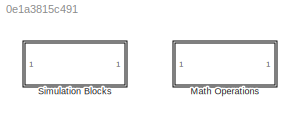
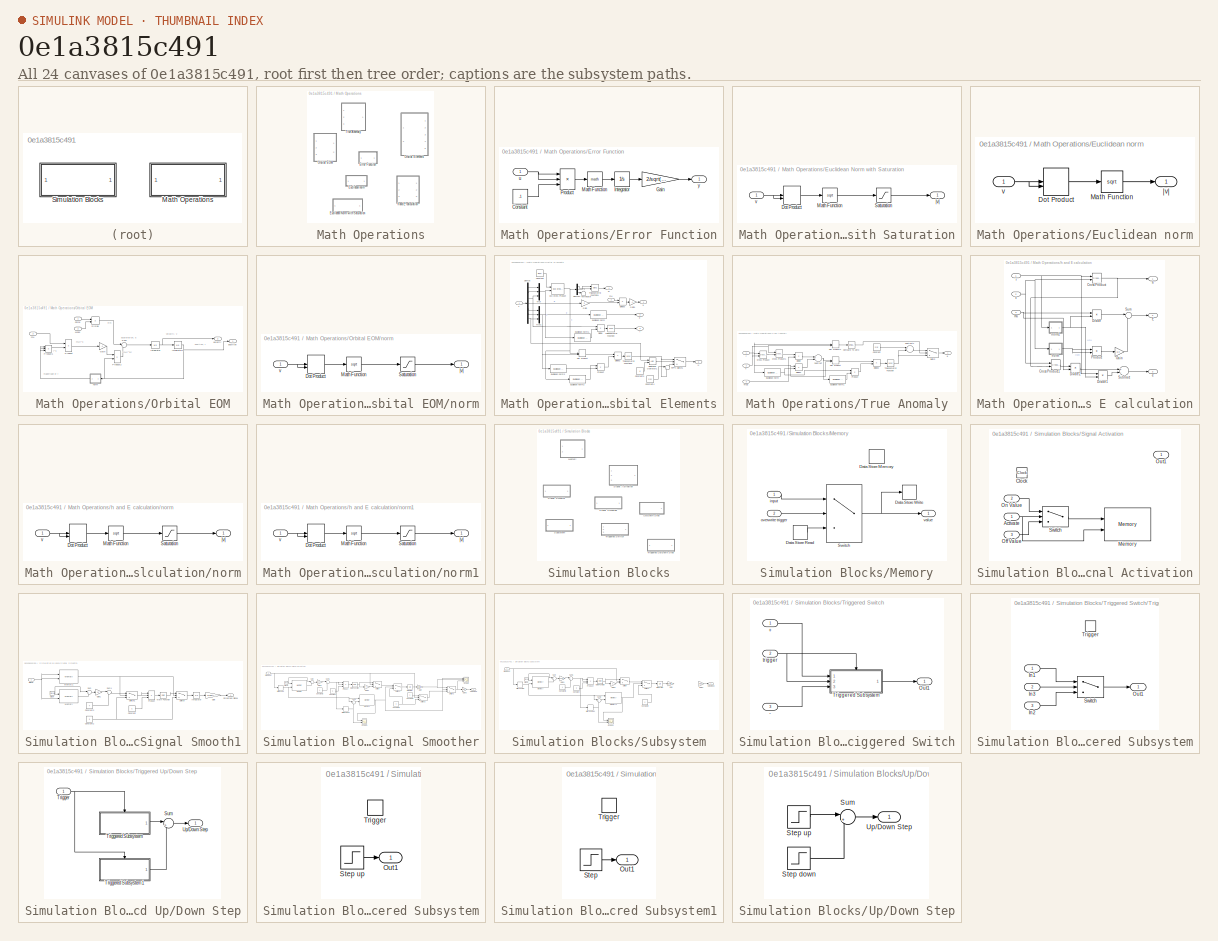
[diagram: thumbnail index - all 24 canvases of the model, root first then tree order]
MODEL slx_0e1a3815c491
KIND library
CONFIG AbsTol = auto
CONFIG EnableMultiTasking = off
CONFIG FixedStep = auto
CONFIG MaxStep = auto
CONFIG MinStep = auto
CONFIG RelTol = 1e-3
CONFIG SampleTimeConstraint = Unconstrained
CONFIG Solver = VariableStepAuto
CONFIG SolverName = VariableStepAuto
CONFIG StartTime = 0.0
CONFIG StopTime = 10.0
BLOCK [SubSystem] Math Operations
  Ports = []
  RequestExecContextInheritance = off
  Variant = off
BLOCK [SubSystem] Math Operations/Error Function
  Ports = [1, 1]
  RequestExecContextInheritance = off
  Variant = off
BLOCK [Constant] Math Operations/Error Function/Constant
  Value = -1
BLOCK [Gain] Math Operations/Error Function/Gain
  Gain = 2/sqrt(pi)
  OutDataTypeStr = Inherit: Inherit via internal rule
  ParamDataTypeStr = Inherit: Inherit via internal rule
  SaturateOnIntegerOverflow = off
BLOCK [Integrator] Math Operations/Error Function/Integrator
  Ports = [1, 1]
BLOCK [Math] Math Operations/Error Function/Math Function
  Ports = [1, 1]
BLOCK [Product] Math Operations/Error Function/Product
  InputSameDT = off
  Inputs = 3
  OutDataTypeStr = Inherit: Inherit via internal rule
  Ports = [3, 1]
  RndMeth = Floor
  SaturateOnIntegerOverflow = off
BLOCK [Inport] Math Operations/Error Function/u
  IconDisplay = Port number
BLOCK [Outport] Math Operations/Error Function/y
  IconDisplay = Port number
BLOCK [SubSystem] Math Operations/Euclidean Norm with Saturation
  Ports = [1, 1]
  RequestExecContextInheritance = off
  Variant = off
BLOCK [DotProduct] Math Operations/Euclidean Norm with Saturation/Dot Product
  OutDataTypeStr = Inherit: Inherit via internal rule
BLOCK [Math] Math Operations/Euclidean Norm with Saturation/Math Function
  Operator = sqrt
  Ports = [1, 1]
BLOCK [Saturate] Math Operations/Euclidean Norm with Saturation/Saturation
  InputPortMap = u0
  LowerLimit = 1e-10
  Ports = [1, 1]
  UpperLimit = 1e20
BLOCK [Inport] Math Operations/Euclidean Norm with Saturation/v
  IconDisplay = Port number
BLOCK [Outport] Math Operations/Euclidean Norm with Saturation/|v|
  IconDisplay = Port number
BLOCK [SubSystem] Math Operations/Euclidean norm
  Ports = [1, 1]
  RequestExecContextInheritance = off
  Variant = off
BLOCK [DotProduct] Math Operations/Euclidean norm/Dot Product
  OutDataTypeStr = Inherit: Inherit via internal rule
BLOCK [Math] Math Operations/Euclidean norm/Math Function
  Operator = sqrt
  Ports = [1, 1]
BLOCK [Inport] Math Operations/Euclidean norm/v
  IconDisplay = Port number
BLOCK [Outport] Math Operations/Euclidean norm/|v|
  IconDisplay = Port number
BLOCK [SubSystem] Math Operations/Orbital EOM
  Ports = [3, 2]
  RequestExecContextInheritance = off
  Variant = off
BLOCK [Product] Math Operations/Orbital EOM/Divide
  InputSameDT = off
  Inputs = */
  OutDataTypeStr = Inherit: Inherit via internal rule
  Ports = [2, 1]
  RndMeth = Floor
  SaturateOnIntegerOverflow = off
BLOCK [Inport] Math Operations/Orbital EOM/Force
  IconDisplay = Port number
BLOCK [Gain] Math Operations/Orbital EOM/Gain
  Gain = -1
BLOCK [Integrator] Math Operations/Orbital EOM/Integrator
  AbsoluteTolerance = 1e-6
  InitialCondition = v0_follower
  Ports = [1, 1]
BLOCK [Integrator] Math Operations/Orbital EOM/Integrator1
  AbsoluteTolerance = 1e-6
  InitialCondition = r0_follower
  Ports = [1, 1]
BLOCK [Inport] Math Operations/Orbital EOM/Mass
  IconDisplay = Port number
  Port = 2
BLOCK [Product] Math Operations/Orbital EOM/Product
  InputSameDT = off
  Inputs = */
  Ports = [2, 1]
  RndMeth = Floor
BLOCK [Product] Math Operations/Orbital EOM/Product1
  InputSameDT = off
  Inputs = ***
  Ports = [3, 1]
  RndMeth = Floor
BLOCK [Product] Math Operations/Orbital EOM/Product2
  InputSameDT = off
  Inputs = **
  Ports = [2, 1]
  RndMeth = Floor
BLOCK [Sum] Math Operations/Orbital EOM/Sum
  IconShape = round
  InputSameDT = off
  Inputs = |++
  OutDataTypeStr = Inherit: Inherit via internal rule
  Ports = [2, 1]
  SaturateOnIntegerOverflow = off
BLOCK [Inport] Math Operations/Orbital EOM/mu
  IconDisplay = Port number
  Port = 3
BLOCK [SubSystem] Math Operations/Orbital EOM/norm
  Ports = [1, 1]
  RequestExecContextInheritance = off
  Variant = off
BLOCK [DotProduct] Math Operations/Orbital EOM/norm/Dot Product
  OutDataTypeStr = Inherit: Inherit via internal rule
BLOCK [Math] Math Operations/Orbital EOM/norm/Math Function
  Operator = sqrt
  Ports = [1, 1]
BLOCK [Saturate] Math Operations/Orbital EOM/norm/Saturation
  InputPortMap = u0
  LowerLimit = 1e-10
  Ports = [1, 1]
  UpperLimit = 1e20
BLOCK [Inport] Math Operations/Orbital EOM/norm/v
  IconDisplay = Port number
BLOCK [Outport] Math Operations/Orbital EOM/norm/|v|
  IconDisplay = Port number
BLOCK [Outport] Math Operations/Orbital EOM/position
  IconDisplay = Port number
BLOCK [Outport] Math Operations/Orbital EOM/velocity
  IconDisplay = Port number
  Port = 2
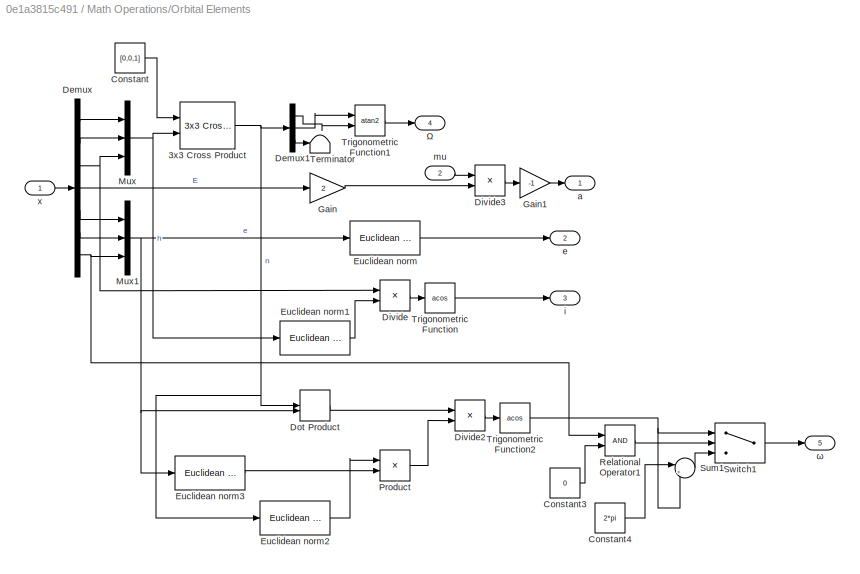
BLOCK [SubSystem] Math Operations/Orbital Elements
  Ports = [2, 5]
  RequestExecContextInheritance = off
  Variant = off
BLOCK [Reference] Math Operations/Orbital Elements/3x3 Cross Product  REF=sharedutil/3x3 Cross Product
  Ports = [2, 1]
  SourceBlock = sharedutil/3x3 Cross Product
  SourceProductBaseCode = AE
  SourceProductName = Aerospace Blockset
  SourceType = CrossProduct
BLOCK [Constant] Math Operations/Orbital Elements/Constant
  Value = [0,0,1]
BLOCK [Constant] Math Operations/Orbital Elements/Constant3
  Value = 0
BLOCK [Constant] Math Operations/Orbital Elements/Constant4
  Value = 2*pi
BLOCK [Demux] Math Operations/Orbital Elements/Demux
  DisplayOption = bar
  Outputs = 7
  Ports = [1, 7]
BLOCK [Demux] Math Operations/Orbital Elements/Demux1
  DisplayOption = bar
  Outputs = 3
  Ports = [1, 3]
BLOCK [Product] Math Operations/Orbital Elements/Divide
  InputSameDT = off
  Inputs = */
  OutDataTypeStr = Inherit: Inherit via internal rule
  Ports = [2, 1]
  RndMeth = Floor
  SaturateOnIntegerOverflow = off
BLOCK [Product] Math Operations/Orbital Elements/Divide2
  InputSameDT = off
  Inputs = */
  OutDataTypeStr = Inherit: Inherit via internal rule
  Ports = [2, 1]
  RndMeth = Floor
  SaturateOnIntegerOverflow = off
BLOCK [Product] Math Operations/Orbital Elements/Divide3
  InputSameDT = off
  Inputs = */
  OutDataTypeStr = Inherit: Inherit via internal rule
  Ports = [2, 1]
  RndMeth = Floor
  SaturateOnIntegerOverflow = off
BLOCK [DotProduct] Math Operations/Orbital Elements/Dot Product
  OutDataTypeStr = Inherit: Inherit via internal rule
BLOCK [Reference] Math Operations/Orbital Elements/Euclidean norm  REF=hEemethod/Math Operations/Euclidean norm
  Ports = [1, 1]
  SourceBlock = hEemethod/Math Operations/Euclidean norm
  SourceProductName = HEe Method Library
  SourceType = Euclidean Norm
BLOCK [Reference] Math Operations/Orbital Elements/Euclidean norm1  REF=hEemethod/Math Operations/Euclidean norm
  Ports = [1, 1]
  SourceBlock = hEemethod/Math Operations/Euclidean norm
  SourceProductName = HEe Method Library
  SourceType = Euclidean Norm
BLOCK [Reference] Math Operations/Orbital Elements/Euclidean norm2  REF=hEemethod/Math Operations/Euclidean norm
  Ports = [1, 1]
  SourceBlock = hEemethod/Math Operations/Euclidean norm
  SourceProductName = HEe Method Library
  SourceType = Euclidean Norm
BLOCK [Reference] Math Operations/Orbital Elements/Euclidean norm3  REF=hEemethod/Math Operations/Euclidean norm
  Ports = [1, 1]
  SourceBlock = hEemethod/Math Operations/Euclidean norm
  SourceProductName = HEe Method Library
  SourceType = Euclidean Norm
BLOCK [Gain] Math Operations/Orbital Elements/Gain
  Gain = 2
  OutDataTypeStr = Inherit: Inherit via internal rule
  ParamDataTypeStr = Inherit: Inherit via internal rule
  SaturateOnIntegerOverflow = off
BLOCK [Gain] Math Operations/Orbital Elements/Gain1
  Gain = -1
  OutDataTypeStr = Inherit: Inherit via internal rule
  ParamDataTypeStr = Inherit: Inherit via internal rule
  SaturateOnIntegerOverflow = off
BLOCK [Mux] Math Operations/Orbital Elements/Mux
  DisplayOption = bar
  Inputs = 3
  Ports = [3, 1]
BLOCK [Mux] Math Operations/Orbital Elements/Mux1
  DisplayOption = bar
  Inputs = 3
  Ports = [3, 1]
BLOCK [Product] Math Operations/Orbital Elements/Product
  InputSameDT = off
  OutDataTypeStr = Inherit: Inherit via internal rule
  Ports = [2, 1]
  RndMeth = Floor
  SaturateOnIntegerOverflow = off
BLOCK [RelationalOperator] Math Operations/Orbital Elements/Relational Operator1
  InputSameDT = off
  OutDataTypeStr = boolean
  Ports = [2, 1]
  RndMeth = Simplest
BLOCK [Sum] Math Operations/Orbital Elements/Sum1
  IconShape = round
  InputSameDT = off
  Inputs = |+-
  OutDataTypeStr = Inherit: Inherit via internal rule
  Ports = [2, 1]
  SaturateOnIntegerOverflow = off
BLOCK [Switch] Math Operations/Orbital Elements/Switch1
  Criteria = u2 > Threshold
  InputSameDT = off
  SaturateOnIntegerOverflow = off
BLOCK [Terminator] Math Operations/Orbital Elements/Terminator
BLOCK [Trigonometry] Math Operations/Orbital Elements/Trigonometric Function
  Operator = acos
  Ports = [1, 1]
BLOCK [Trigonometry] Math Operations/Orbital Elements/Trigonometric Function1
  Operator = atan2
  Ports = [2, 1]
BLOCK [Trigonometry] Math Operations/Orbital Elements/Trigonometric Function2
  Operator = acos
  Ports = [1, 1]
BLOCK [Outport] Math Operations/Orbital Elements/a
  IconDisplay = Port number
BLOCK [Outport] Math Operations/Orbital Elements/e
  IconDisplay = Port number
  Port = 2
BLOCK [Outport] Math Operations/Orbital Elements/i
  IconDisplay = Port number
  Port = 3
BLOCK [Inport] Math Operations/Orbital Elements/mu
  IconDisplay = Port number
  Port = 2
BLOCK [Inport] Math Operations/Orbital Elements/x
  IconDisplay = Port number
BLOCK [Outport] Math Operations/Orbital Elements/Ω
  IconDisplay = Port number
  Port = 4
BLOCK [Outport] Math Operations/Orbital Elements/ω
  IconDisplay = Port number
  Port = 5
BLOCK [SubSystem] Math Operations/True Anomaly
  Ports = [3, 1]
  RequestExecContextInheritance = off
  Variant = off
BLOCK [Reference] Math Operations/True Anomaly/Compare To Zero  REF=simulink/Logic and Bit
Operations/Compare
To Zero
  Ports = [1, 1]
  SourceBlock = simulink/Logic and Bit\nOperations/Compare\nTo Zero
  SourceProductBaseCode = SL
  SourceProductName = Simulink
  SourceType = Compare To Zero
BLOCK [Constant] Math Operations/True Anomaly/Constant
  Value = 2*pi
BLOCK [Reference] Math Operations/True Anomaly/Cross Product  REF=vrlib/Utilities/Cross Product
  Ports = [2, 1]
  SourceBlock = vrlib/Utilities/Cross Product
  SourceProductBaseCode = VR
  SourceProductName = Simulink 3D Animation
  SourceType = Cross Product
BLOCK [Reference] Math Operations/True Anomaly/Cross Product1  REF=vrlib/Utilities/Cross Product
  Ports = [2, 1]
  SourceBlock = vrlib/Utilities/Cross Product
  SourceProductBaseCode = VR
  SourceProductName = Simulink 3D Animation
  SourceType = Cross Product
BLOCK [Product] Math Operations/True Anomaly/Divide
  InputSameDT = off
  Inputs = */
  OutDataTypeStr = Inherit: Inherit via internal rule
  Ports = [2, 1]
  RndMeth = Floor
  SaturateOnIntegerOverflow = off
BLOCK [Product] Math Operations/True Anomaly/Divide1
  InputSameDT = off
  Inputs = */
  OutDataTypeStr = Inherit: Inherit via internal rule
  Ports = [2, 1]
  RndMeth = Floor
  SaturateOnIntegerOverflow = off
BLOCK [Product] Math Operations/True Anomaly/Divide2
  InputSameDT = off
  Inputs = */
  OutDataTypeStr = Inherit: Inherit via internal rule
  Ports = [2, 1]
  RndMeth = Floor
  SaturateOnIntegerOverflow = off
BLOCK [DotProduct] Math Operations/True Anomaly/Dot Product
  OutDataTypeStr = Inherit: Inherit via internal rule
BLOCK [DotProduct] Math Operations/True Anomaly/Dot Product1
  OutDataTypeStr = Inherit: Inherit via internal rule
BLOCK [Reference] Math Operations/True Anomaly/Euclidean norm  REF=hEemethod/Math Operations/Euclidean norm
  Ports = [1, 1]
  SourceBlock = hEemethod/Math Operations/Euclidean norm
  SourceProductName = HEe Method Library
  SourceType = Euclidean Norm
BLOCK [Reference] Math Operations/True Anomaly/Euclidean norm1  REF=hEemethod/Math Operations/Euclidean norm
  Ports = [1, 1]
  SourceBlock = hEemethod/Math Operations/Euclidean norm
  SourceProductName = HEe Method Library
  SourceType = Euclidean Norm
BLOCK [Product] Math Operations/True Anomaly/Product
  InputSameDT = off
  OutDataTypeStr = Inherit: Inherit via internal rule
  Ports = [2, 1]
  RndMeth = Floor
  SaturateOnIntegerOverflow = off
BLOCK [Sum] Math Operations/True Anomaly/Subtract
  InputSameDT = off
  Inputs = +-
  OutDataTypeStr = Inherit: Inherit via internal rule
  Ports = [2, 1]
  SaturateOnIntegerOverflow = off
BLOCK [Sum] Math Operations/True Anomaly/Subtract1
  InputSameDT = off
  Inputs = +-
  OutDataTypeStr = Inherit: Inherit via internal rule
  Ports = [2, 1]
  SaturateOnIntegerOverflow = off
BLOCK [Switch] Math Operations/True Anomaly/Switch
  Criteria = u2 > Threshold
  InputSameDT = off
  SaturateOnIntegerOverflow = off
BLOCK [Trigonometry] Math Operations/True Anomaly/Trigonometric Function
  Operator = acos
  OutputSignalType = real
  Ports = [1, 1]
BLOCK [Inport] Math Operations/True Anomaly/muE
  IconDisplay = Port number
  Port = 3
BLOCK [Inport] Math Operations/True Anomaly/r
  IconDisplay = Port number
BLOCK [Inport] Math Operations/True Anomaly/v
  IconDisplay = Port number
  Port = 2
BLOCK [Outport] Math Operations/True Anomaly/θ
  IconDisplay = Port number
BLOCK [SubSystem] Math Operations/h and E calculation
  Ports = [3, 3]
  RequestExecContextInheritance = off
  Variant = off
BLOCK [Reference] Math Operations/h and E calculation/Cross Product  REF=vrlib/Utilities/Cross Product
  Ports = [2, 1]
  SourceBlock = vrlib/Utilities/Cross Product
  SourceProductBaseCode = VR
  SourceProductName = Simulink 3D Animation
  SourceType = Cross Product
BLOCK [Reference] Math Operations/h and E calculation/Cross Product1  REF=vrlib/Utilities/Cross Product
  Ports = [2, 1]
  SourceBlock = vrlib/Utilities/Cross Product
  SourceProductBaseCode = VR
  SourceProductName = Simulink 3D Animation
  SourceType = Cross Product
BLOCK [Product] Math Operations/h and E calculation/Divide
  InputSameDT = off
  Inputs = */
  OutDataTypeStr = Inherit: Inherit via internal rule
  Ports = [2, 1]
  RndMeth = Floor
  SaturateOnIntegerOverflow = off
BLOCK [Product] Math Operations/h and E calculation/Divide1
  InputSameDT = off
  Inputs = */
  OutDataTypeStr = Inherit: Inherit via internal rule
  Ports = [2, 1]
  RndMeth = Floor
  SaturateOnIntegerOverflow = off
BLOCK [Product] Math Operations/h and E calculation/Divide2
  InputSameDT = off
  Inputs = */
  OutDataTypeStr = Inherit: Inherit via internal rule
  Ports = [2, 1]
  RndMeth = Floor
  SaturateOnIntegerOverflow = off
BLOCK [Outport] Math Operations/h and E calculation/E
  IconDisplay = Port number
  Port = 2
BLOCK [Gain] Math Operations/h and E calculation/Gain
  Gain = 1/2
  OutDataTypeStr = Inherit: Inherit via internal rule
  ParamDataTypeStr = Inherit: Inherit via internal rule
  SaturateOnIntegerOverflow = off
BLOCK [Product] Math Operations/h and E calculation/Product
  InputSameDT = off
  OutDataTypeStr = Inherit: Inherit via internal rule
  Ports = [2, 1]
  RndMeth = Floor
  SaturateOnIntegerOverflow = off
BLOCK [Sum] Math Operations/h and E calculation/Subtract
  InputSameDT = off
  Inputs = +-
  OutDataTypeStr = Inherit: Inherit via internal rule
  Ports = [2, 1]
  SaturateOnIntegerOverflow = off
BLOCK [Sum] Math Operations/h and E calculation/Sum
  IconShape = round
  InputSameDT = off
  Inputs = |-+
  OutDataTypeStr = Inherit: Inherit via internal rule
  Ports = [2, 1]
  SaturateOnIntegerOverflow = off
BLOCK [Outport] Math Operations/h and E calculation/e
  IconDisplay = Port number
  Port = 3
BLOCK [Outport] Math Operations/h and E calculation/h
  IconDisplay = Port number
BLOCK [Inport] Math Operations/h and E calculation/mu
  IconDisplay = Port number
  Port = 3
BLOCK [SubSystem] Math Operations/h and E calculation/norm
  Ports = [1, 1]
  RequestExecContextInheritance = off
  Variant = off
BLOCK [DotProduct] Math Operations/h and E calculation/norm/Dot Product
  OutDataTypeStr = Inherit: Inherit via internal rule
BLOCK [Math] Math Operations/h and E calculation/norm/Math Function
  Operator = sqrt
  Ports = [1, 1]
BLOCK [Saturate] Math Operations/h and E calculation/norm/Saturation
  InputPortMap = u0
  LowerLimit = 1e-10
  Ports = [1, 1]
  UpperLimit = 1e20
BLOCK [Inport] Math Operations/h and E calculation/norm/v
  IconDisplay = Port number
BLOCK [Outport] Math Operations/h and E calculation/norm/|v|
  IconDisplay = Port number
BLOCK [SubSystem] Math Operations/h and E calculation/norm1
  Ports = [1, 1]
  RequestExecContextInheritance = off
  Variant = off
BLOCK [DotProduct] Math Operations/h and E calculation/norm1/Dot Product
  OutDataTypeStr = Inherit: Inherit via internal rule
BLOCK [Math] Math Operations/h and E calculation/norm1/Math Function
  Operator = sqrt
  Ports = [1, 1]
BLOCK [Saturate] Math Operations/h and E calculation/norm1/Saturation
  InputPortMap = u0
  LowerLimit = 1e-10
  Ports = [1, 1]
  UpperLimit = 1e20
BLOCK [Inport] Math Operations/h and E calculation/norm1/v
  IconDisplay = Port number
BLOCK [Outport] Math Operations/h and E calculation/norm1/|v|
  IconDisplay = Port number
BLOCK [Inport] Math Operations/h and E calculation/r
  IconDisplay = Port number
BLOCK [Inport] Math Operations/h and E calculation/v
  IconDisplay = Port number
  Port = 2
BLOCK [SubSystem] Simulation Blocks
  Ports = []
  RequestExecContextInheritance = off
  Variant = off
BLOCK [SubSystem] Simulation Blocks/Memory
  Ports = [2, 1]
  RequestExecContextInheritance = off
  Variant = off
BLOCK [DataStoreMemory] Simulation Blocks/Memory/Data Store Memory
  DataStoreName = Mem
  ShowAdditionalParam = off
BLOCK [DataStoreRead] Simulation Blocks/Memory/Data Store Read
  DataStoreElements = Mem
  DataStoreName = Mem
  Ports = [0, 1]
  SampleTime = [0,0]
BLOCK [DataStoreWrite] Simulation Blocks/Memory/Data Store Write
  DataStoreElements = Mem
  DataStoreName = Mem
  Ports = [1]
  SampleTime = [0,0]
BLOCK [Switch] Simulation Blocks/Memory/Switch
  Criteria = u2 > Threshold
  InputSameDT = off
  SaturateOnIntegerOverflow = off
BLOCK [Inport] Simulation Blocks/Memory/input
  IconDisplay = Port number
BLOCK [Inport] Simulation Blocks/Memory/overwrite trigger
  IconDisplay = Port number
  Port = 2
BLOCK [Outport] Simulation Blocks/Memory/value
  IconDisplay = Port number
BLOCK [SubSystem] Simulation Blocks/Signal Activation
  Ports = [3, 1]
  RequestExecContextInheritance = off
  Variant = off
BLOCK [Inport] Simulation Blocks/Signal Activation/Activate
  IconDisplay = Port number
BLOCK [Clock] Simulation Blocks/Signal Activation/Clock
BLOCK [Reference] Simulation Blocks/Signal Activation/Memory  REF=hEemethod/Simulation Blocks/Memory
  Ports = [2, 1]
  SourceBlock = hEemethod/Simulation Blocks/Memory
  SourceProductName = HEe Method Library
  SourceType = Memory
BLOCK [Inport] Simulation Blocks/Signal Activation/Off Value
  IconDisplay = Port number
  Port = 3
BLOCK [Inport] Simulation Blocks/Signal Activation/On Value
  IconDisplay = Port number
  Port = 2
BLOCK [Outport] Simulation Blocks/Signal Activation/Out1
  IconDisplay = Port number
BLOCK [Switch] Simulation Blocks/Signal Activation/Switch
  Criteria = u2 > Threshold
  InputSameDT = off
  SaturateOnIntegerOverflow = off
BLOCK [SubSystem] Simulation Blocks/Signal Smooth1
  Ports = [1, 1]
  RequestExecContextInheritance = off
  Variant = off
BLOCK [Clock] Simulation Blocks/Signal Smooth1/Clock
BLOCK [Constant] Simulation Blocks/Signal Smooth1/Constant
  Value = -1
BLOCK [Constant] Simulation Blocks/Signal Smooth1/Constant2
  Value = 0
BLOCK [Constant] Simulation Blocks/Signal Smooth1/Constant3
  Value = 4
BLOCK [Gain] Simulation Blocks/Signal Smooth1/Gain
  Gain = 2/sqrt(pi)
  OutDataTypeStr = Inherit: Inherit via internal rule
  ParamDataTypeStr = Inherit: Inherit via internal rule
  SaturateOnIntegerOverflow = off
BLOCK [Gain] Simulation Blocks/Signal Smooth1/Gain1
  Gain = 10
  OutDataTypeStr = Inherit: Inherit via internal rule
  ParamDataTypeStr = Inherit: Inherit via internal rule
  SaturateOnIntegerOverflow = off
BLOCK [Integrator] Simulation Blocks/Signal Smooth1/Integrator
  Ports = [1, 1]
BLOCK [Math] Simulation Blocks/Signal Smooth1/Math Function
  Ports = [1, 1]
BLOCK [Reference] Simulation Blocks/Signal Smooth1/Memory  REF=hEemethod/Simulation Blocks/Memory
  Ports = [2, 1]
  SourceBlock = hEemethod/Simulation Blocks/Memory
  SourceProductName = HEe Method Library
  SourceType = Memory
BLOCK [Reference] Simulation Blocks/Signal Smooth1/Memory1  REF=hEemethod/Simulation Blocks/Memory
  Ports = [2, 1]
  SourceBlock = hEemethod/Simulation Blocks/Memory
  SourceProductName = HEe Method Library
  SourceType = Memory
BLOCK [Product] Simulation Blocks/Signal Smooth1/Product
  InputSameDT = off
  Inputs = 3
  OutDataTypeStr = Inherit: Inherit via internal rule
  Ports = [3, 1]
  RndMeth = Floor
  SaturateOnIntegerOverflow = off
BLOCK [Inport] Simulation Blocks/Signal Smooth1/Signal
  IconDisplay = Port number
BLOCK [Outport] Simulation Blocks/Signal Smooth1/Smoothed Signal
  IconDisplay = Port number
BLOCK [Sum] Simulation Blocks/Signal Smooth1/Sum
  IconShape = round
  InputSameDT = off
  Inputs = |+-
  OutDataTypeStr = Inherit: Inherit via internal rule
  Ports = [2, 1]
  SaturateOnIntegerOverflow = off
BLOCK [Sum] Simulation Blocks/Signal Smooth1/Sum1
  IconShape = round
  InputSameDT = off
  Inputs = |+-
  OutDataTypeStr = Inherit: Inherit via internal rule
  Ports = [2, 1]
  SaturateOnIntegerOverflow = off
BLOCK [Switch] Simulation Blocks/Signal Smooth1/Switch
  Criteria = u2 > Threshold
  InputSameDT = off
  SaturateOnIntegerOverflow = off
BLOCK [Switch] Simulation Blocks/Signal Smooth1/Switch1
  Criteria = u2 > Threshold
  InputSameDT = off
  SaturateOnIntegerOverflow = off
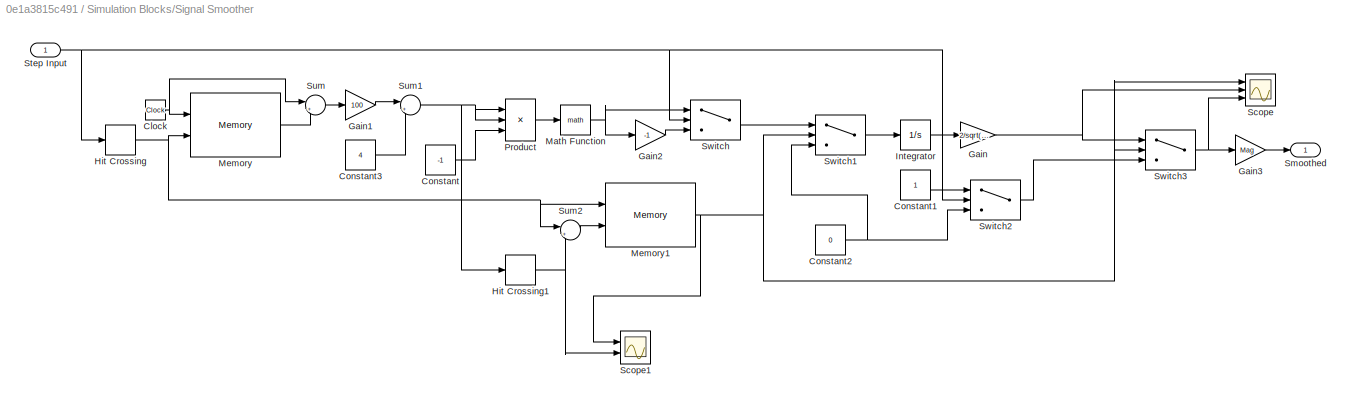
BLOCK [SubSystem] Simulation Blocks/Signal Smoother
  Ports = [1, 1]
  RequestExecContextInheritance = off
  Variant = off
BLOCK [Clock] Simulation Blocks/Signal Smoother/Clock
BLOCK [Constant] Simulation Blocks/Signal Smoother/Constant
  Value = -1
BLOCK [Constant] Simulation Blocks/Signal Smoother/Constant1
BLOCK [Constant] Simulation Blocks/Signal Smoother/Constant2
  Value = 0
BLOCK [Constant] Simulation Blocks/Signal Smoother/Constant3
  Value = 4
BLOCK [Gain] Simulation Blocks/Signal Smoother/Gain
  Gain = 2/sqrt(pi)*100/2
  OutDataTypeStr = Inherit: Inherit via internal rule
  ParamDataTypeStr = Inherit: Inherit via internal rule
  SaturateOnIntegerOverflow = off
BLOCK [Gain] Simulation Blocks/Signal Smoother/Gain1
  Gain = 100
  OutDataTypeStr = Inherit: Inherit via internal rule
  ParamDataTypeStr = Inherit: Inherit via internal rule
  SaturateOnIntegerOverflow = off
BLOCK [Gain] Simulation Blocks/Signal Smoother/Gain2
  Gain = -1
  OutDataTypeStr = Inherit: Inherit via internal rule
  ParamDataTypeStr = Inherit: Inherit via internal rule
  SaturateOnIntegerOverflow = off
BLOCK [Gain] Simulation Blocks/Signal Smoother/Gain3
  Gain = Mag
  OutDataTypeStr = Inherit: Inherit via internal rule
  ParamDataTypeStr = Inherit: Inherit via internal rule
  SaturateOnIntegerOverflow = off
BLOCK [HitCross] Simulation Blocks/Signal Smoother/Hit Crossing
  HitCrossingOffset = 0.5
  Ports = [1, 1]
BLOCK [HitCross] Simulation Blocks/Signal Smoother/Hit Crossing1
  HitCrossingDirection = rising
  HitCrossingOffset = 4
  Ports = [1, 1]
BLOCK [Integrator] Simulation Blocks/Signal Smoother/Integrator
  Ports = [1, 1]
BLOCK [Math] Simulation Blocks/Signal Smoother/Math Function
  Ports = [1, 1]
BLOCK [Reference] Simulation Blocks/Signal Smoother/Memory  REF=hEemethod/Simulation Blocks/Memory
  Ports = [2, 1]
  SourceBlock = hEemethod/Simulation Blocks/Memory
  SourceProductName = HEe Method Library
  SourceType = Memory
BLOCK [Reference] Simulation Blocks/Signal Smoother/Memory1  REF=hEemethod/Simulation Blocks/Memory
  Ports = [2, 1]
  SourceBlock = hEemethod/Simulation Blocks/Memory
  SourceProductName = HEe Method Library
  SourceType = Memory
BLOCK [Product] Simulation Blocks/Signal Smoother/Product
  InputSameDT = off
  Inputs = 3
  OutDataTypeStr = Inherit: Inherit via internal rule
  Ports = [3, 1]
  RndMeth = Floor
  SaturateOnIntegerOverflow = off
BLOCK [Scope] Simulation Blocks/Signal Smoother/Scope
  NumInputPorts = 3
  Ports = [3]
  ScopeSpecificationString = Simulink.scopes.TimeScopeBlockCfg('CurrentConfiguration', extmgr.ConfigurationSet(extmgr.Configuration('Core','General UI',true),extmgr.Configuration('Core','Source UI',true),extmgr.Configuration('Sources','WiredSimulink',true,'DataLoggingVariableName','ScopeData2'),extmgr.Configuration('Visuals','Time Domain',true,'SerializedDisplays',{struct('MinYLimReal','-0.125','MaxYLimReal','1.125','YLabelRe...<+2753ch>
BLOCK [Scope] Simulation Blocks/Signal Smoother/Scope1
  NumInputPorts = 2
  Ports = [2]
  ScopeSpecificationString = Simulink.scopes.TimeScopeBlockCfg('CurrentConfiguration', extmgr.ConfigurationSet(extmgr.Configuration('Core','General UI',true),extmgr.Configuration('Core','Source UI',true),extmgr.Configuration('Sources','WiredSimulink',true,'DataLoggingVariableName','ScopeData4'),extmgr.Configuration('Visuals','Time Domain',true,'SerializedDisplays',{struct('MinYLimReal','-0.125','MaxYLimReal','1.125','YLabelRe...<+2055ch>
BLOCK [Outport] Simulation Blocks/Signal Smoother/Smoothed
  IconDisplay = Port number
BLOCK [Inport] Simulation Blocks/Signal Smoother/Step Input
  IconDisplay = Port number
BLOCK [Sum] Simulation Blocks/Signal Smoother/Sum
  IconShape = round
  InputSameDT = off
  Inputs = |+-
  OutDataTypeStr = Inherit: Inherit via internal rule
  Ports = [2, 1]
  SaturateOnIntegerOverflow = off
BLOCK [Sum] Simulation Blocks/Signal Smoother/Sum1
  IconShape = round
  InputSameDT = off
  Inputs = |+-
  OutDataTypeStr = Inherit: Inherit via internal rule
  Ports = [2, 1]
  SaturateOnIntegerOverflow = off
BLOCK [Sum] Simulation Blocks/Signal Smoother/Sum2
  IconShape = round
  InputSameDT = off
  Inputs = |++
  OutDataTypeStr = Inherit: Inherit via internal rule
  Ports = [2, 1]
  SaturateOnIntegerOverflow = off
BLOCK [Switch] Simulation Blocks/Signal Smoother/Switch
  Criteria = u2 > Threshold
  InputSameDT = off
  SaturateOnIntegerOverflow = off
BLOCK [Switch] Simulation Blocks/Signal Smoother/Switch1
  Criteria = u2 > Threshold
  InputSameDT = off
  SaturateOnIntegerOverflow = off
BLOCK [Switch] Simulation Blocks/Signal Smoother/Switch2
  Criteria = u2 > Threshold
  InputSameDT = off
  SaturateOnIntegerOverflow = off
BLOCK [Switch] Simulation Blocks/Signal Smoother/Switch3
  Criteria = u2 > Threshold
  InputSameDT = off
  SaturateOnIntegerOverflow = off
BLOCK [SubSystem] Simulation Blocks/Subsystem
  Ports = [1, 1]
  RequestExecContextInheritance = off
  Variant = off
BLOCK [Clock] Simulation Blocks/Subsystem/Clock
BLOCK [Constant] Simulation Blocks/Subsystem/Constant
  Value = -1
BLOCK [Constant] Simulation Blocks/Subsystem/Constant2
  Value = 0
BLOCK [Constant] Simulation Blocks/Subsystem/Constant3
  Value = 4
BLOCK [Gain] Simulation Blocks/Subsystem/Gain
  Gain = 2/sqrt(pi)*1000/2
  OutDataTypeStr = Inherit: Inherit via internal rule
  ParamDataTypeStr = Inherit: Inherit via internal rule
  SaturateOnIntegerOverflow = off
BLOCK [Gain] Simulation Blocks/Subsystem/Gain1
  Gain = 1000
  OutDataTypeStr = Inherit: Inherit via internal rule
  ParamDataTypeStr = Inherit: Inherit via internal rule
  SaturateOnIntegerOverflow = off
BLOCK [Gain] Simulation Blocks/Subsystem/Gain2
  Gain = -1
  OutDataTypeStr = Inherit: Inherit via internal rule
  ParamDataTypeStr = Inherit: Inherit via internal rule
  SaturateOnIntegerOverflow = off
BLOCK [Gain] Simulation Blocks/Subsystem/Gain3
  Gain = Mag
  OutDataTypeStr = Inherit: Inherit via internal rule
  ParamDataTypeStr = Inherit: Inherit via internal rule
  SaturateOnIntegerOverflow = off
BLOCK [HitCross] Simulation Blocks/Subsystem/Hit Crossing
  HitCrossingOffset = 0.5
  Ports = [1, 1]
BLOCK [HitCross] Simulation Blocks/Subsystem/Hit Crossing1
  HitCrossingDirection = rising
  HitCrossingOffset = 4
  Ports = [1, 1]
BLOCK [Integrator] Simulation Blocks/Subsystem/Integrator
  Ports = [1, 1]
BLOCK [Math] Simulation Blocks/Subsystem/Math Function
  Ports = [1, 1]
BLOCK [Reference] Simulation Blocks/Subsystem/Memory  REF=hEemethod/Simulation Blocks/Memory
  Ports = [2, 1]
  SourceBlock = hEemethod/Simulation Blocks/Memory
  SourceProductName = HEe Method Library
  SourceType = Memory
BLOCK [Reference] Simulation Blocks/Subsystem/Memory1  REF=hEemethod/Simulation Blocks/Memory
  Ports = [2, 1]
  SourceBlock = hEemethod/Simulation Blocks/Memory
  SourceProductName = HEe Method Library
  SourceType = Memory
BLOCK [Product] Simulation Blocks/Subsystem/Product
  InputSameDT = off
  Inputs = 3
  OutDataTypeStr = Inherit: Inherit via internal rule
  Ports = [3, 1]
  RndMeth = Floor
  SaturateOnIntegerOverflow = off
BLOCK [Scope] Simulation Blocks/Subsystem/Scope1
  NumInputPorts = 2
  Ports = [2]
  ScopeSpecificationString = Simulink.scopes.TimeScopeBlockCfg('CurrentConfiguration', extmgr.ConfigurationSet(extmgr.Configuration('Core','General UI',true),extmgr.Configuration('Core','Source UI',true),extmgr.Configuration('Sources','WiredSimulink',true,'DataLoggingVariableName','ScopeData2'),extmgr.Configuration('Visuals','Time Domain',true,'SerializedDisplays',{struct('MinYLimReal','-0.125','MaxYLimReal','1.125','YLabelRe...<+2055ch>
BLOCK [Outport] Simulation Blocks/Subsystem/Smoothed
  IconDisplay = Port number
BLOCK [Inport] Simulation Blocks/Subsystem/Step Input
  IconDisplay = Port number
BLOCK [Sum] Simulation Blocks/Subsystem/Sum
  IconShape = round
  InputSameDT = off
  Inputs = |+-
  OutDataTypeStr = Inherit: Inherit via internal rule
  Ports = [2, 1]
  SaturateOnIntegerOverflow = off
BLOCK [Sum] Simulation Blocks/Subsystem/Sum1
  IconShape = round
  InputSameDT = off
  Inputs = |+-
  OutDataTypeStr = Inherit: Inherit via internal rule
  Ports = [2, 1]
  SaturateOnIntegerOverflow = off
BLOCK [Sum] Simulation Blocks/Subsystem/Sum2
  IconShape = round
  InputSameDT = off
  Inputs = |++
  OutDataTypeStr = Inherit: Inherit via internal rule
  Ports = [2, 1]
  SaturateOnIntegerOverflow = off
BLOCK [Switch] Simulation Blocks/Subsystem/Switch
  Criteria = u2 > Threshold
  InputSameDT = off
  SaturateOnIntegerOverflow = off
BLOCK [Switch] Simulation Blocks/Subsystem/Switch1
  Criteria = u2 > Threshold
  InputSameDT = off
  SaturateOnIntegerOverflow = off
BLOCK [SubSystem] Simulation Blocks/Triggered Switch
  Ports = [3, 1]
  RequestExecContextInheritance = off
  Variant = off
BLOCK [Inport] Simulation Blocks/Triggered Switch/+
  IconDisplay = Port number
BLOCK [Inport] Simulation Blocks/Triggered Switch/-
  IconDisplay = Port number
  Port = 3
BLOCK [Outport] Simulation Blocks/Triggered Switch/Out1
  IconDisplay = Port number
BLOCK [SubSystem] Simulation Blocks/Triggered Switch/Triggered Subsystem
  Ports = [3, 1, 0, 1]
  RequestExecContextInheritance = off
  TreatAsAtomicUnit = on
  Variant = off
BLOCK [Inport] Simulation Blocks/Triggered Switch/Triggered Subsystem/In1
  IconDisplay = Port number
BLOCK [Inport] Simulation Blocks/Triggered Switch/Triggered Subsystem/In2
  IconDisplay = Port number
  Port = 3
BLOCK [Inport] Simulation Blocks/Triggered Switch/Triggered Subsystem/In3
  IconDisplay = Port number
  Port = 2
BLOCK [Outport] Simulation Blocks/Triggered Switch/Triggered Subsystem/Out1
  IconDisplay = Port number
BLOCK [Switch] Simulation Blocks/Triggered Switch/Triggered Subsystem/Switch
  Criteria = u2 > Threshold
  InputSameDT = off
  SaturateOnIntegerOverflow = off
BLOCK [TriggerPort] Simulation Blocks/Triggered Switch/Triggered Subsystem/Trigger
  Ports = []
  StatesWhenEnabling = held
  TriggerType = either
  VariantControl = Variant
BLOCK [Inport] Simulation Blocks/Triggered Switch/trigger
  IconDisplay = Port number
  Port = 2
BLOCK [SubSystem] Simulation Blocks/Triggered Up//Down Step
  Ports = [1, 1]
  RequestExecContextInheritance = off
  Variant = off
BLOCK [Sum] Simulation Blocks/Triggered Up//Down Step/Sum
  IconShape = round
  InputSameDT = off
  Inputs = |++
  OutDataTypeStr = Inherit: Inherit via internal rule
  Ports = [2, 1]
  SaturateOnIntegerOverflow = off
BLOCK [Inport] Simulation Blocks/Triggered Up//Down Step/Trigger
  IconDisplay = Port number
BLOCK [SubSystem] Simulation Blocks/Triggered Up//Down Step/Triggered Subsystem
  Ports = [0, 1, 0, 1]
  RequestExecContextInheritance = off
  TreatAsAtomicUnit = on
  Variant = off
BLOCK [Outport] Simulation Blocks/Triggered Up//Down Step/Triggered Subsystem/Out1
  IconDisplay = Port number
BLOCK [Step] Simulation Blocks/Triggered Up//Down Step/Triggered Subsystem/Step up
  SampleTime = 0
  Time = 0
BLOCK [TriggerPort] Simulation Blocks/Triggered Up//Down Step/Triggered Subsystem/Trigger
  Ports = []
  StatesWhenEnabling = held
  VariantControl = Variant
BLOCK [SubSystem] Simulation Blocks/Triggered Up//Down Step/Triggered Subsystem1
  Ports = [0, 1, 0, 1]
  RequestExecContextInheritance = off
  TreatAsAtomicUnit = on
  Variant = off
BLOCK [Outport] Simulation Blocks/Triggered Up//Down Step/Triggered Subsystem1/Out1
  IconDisplay = Port number
BLOCK [Step] Simulation Blocks/Triggered Up//Down Step/Triggered Subsystem1/Step
  After = -1
  SampleTime = 0
  Time = 0
BLOCK [TriggerPort] Simulation Blocks/Triggered Up//Down Step/Triggered Subsystem1/Trigger
  Ports = []
  StatesWhenEnabling = held
  TriggerType = falling
  VariantControl = Variant
BLOCK [Outport] Simulation Blocks/Triggered Up//Down Step/Up//Down Step
  IconDisplay = Port number
BLOCK [SubSystem] Simulation Blocks/Up//Down Step
  Ports = [0, 1]
  RequestExecContextInheritance = off
  Variant = off
BLOCK [Step] Simulation Blocks/Up//Down Step/Step down
  After = -Mag2
  SampleTime = 0
  Time = tstep2
BLOCK [Step] Simulation Blocks/Up//Down Step/Step up
  After = Mag1
  SampleTime = 0
  Time = tstep1
BLOCK [Sum] Simulation Blocks/Up//Down Step/Sum
  IconShape = round
  InputSameDT = off
  Inputs = |++
  OutDataTypeStr = Inherit: Inherit via internal rule
  Ports = [2, 1]
  SaturateOnIntegerOverflow = off
BLOCK [Outport] Simulation Blocks/Up//Down Step/Up//Down Step
  IconDisplay = Port number
ANNOTATION Math Operations/Orbital EOM: - mu/r^3* r
ANNOTATION Math Operations/Orbital EOM: position, r
ANNOTATION Math Operations/Orbital EOM: velocity, v
ANNOTATION Math Operations/Orbital EOM: F/m
ANNOTATION Math Operations/Orbital EOM: acceleration, a
ANNOTATION Math Operations/Orbital EOM: magnitude of r
ANNOTATION Math Operations/Orbital EOM: mu/r^3
ANNOTATION Math Operations/Orbital EOM: r^3
LINE Math Operations/Error Function/Constant:1 -> Math Operations/Error Function/Product:3
LINE Math Operations/Error Function/Gain:1 -> Math Operations/Error Function/y:1
LINE Math Operations/Error Function/Integrator:1 -> Math Operations/Error Function/Gain:1
LINE Math Operations/Error Function/Math Function:1 -> Math Operations/Error Function/Integrator:1
LINE Math Operations/Error Function/Product:1 -> Math Operations/Error Function/Math Function:1
NET Math Operations/Error Function/u:1 -> Math Operations/Error Function/Product:1, Math Operations/Error Function/Product:2
LINE Math Operations/Euclidean Norm with Saturation/Dot Product:1 -> Math Operations/Euclidean Norm with Saturation/Math Function:1
LINE Math Operations/Euclidean Norm with Saturation/Math Function:1 -> Math Operations/Euclidean Norm with Saturation/Saturation:1
LINE Math Operations/Euclidean Norm with Saturation/Saturation:1 -> Math Operations/Euclidean Norm with Saturation/|v|:1
NET Math Operations/Euclidean Norm with Saturation/v:1 -> Math Operations/Euclidean Norm with Saturation/Dot Product:1, Math Operations/Euclidean Norm with Saturation/Dot Product:2
LINE Math Operations/Euclidean norm/Dot Product:1 -> Math Operations/Euclidean norm/Math Function:1
LINE Math Operations/Euclidean norm/Math Function:1 -> Math Operations/Euclidean norm/|v|:1
NET Math Operations/Euclidean norm/v:1 -> Math Operations/Euclidean norm/Dot Product:1, Math Operations/Euclidean norm/Dot Product:2
LINE Math Operations/Orbital EOM/Divide:1 -> Math Operations/Orbital EOM/Sum:1
LINE Math Operations/Orbital EOM/Force:1 -> Math Operations/Orbital EOM/Divide:1
LINE Math Operations/Orbital EOM/Gain:1 -> Math Operations/Orbital EOM/Product2:1
NET Math Operations/Orbital EOM/Integrator1:1 -> Math Operations/Orbital EOM/Product2:2, Math Operations/Orbital EOM/norm:1, Math Operations/Orbital EOM/position:1
NET Math Operations/Orbital EOM/Integrator:1 -> Math Operations/Orbital EOM/Integrator1:1, Math Operations/Orbital EOM/velocity:1
LINE Math Operations/Orbital EOM/Mass:1 -> Math Operations/Orbital EOM/Divide:2
LINE Math Operations/Orbital EOM/Product1:1 -> Math Operations/Orbital EOM/Product:2
LINE Math Operations/Orbital EOM/Product2:1 -> Math Operations/Orbital EOM/Sum:2
LINE Math Operations/Orbital EOM/Product:1 -> Math Operations/Orbital EOM/Gain:1
LINE Math Operations/Orbital EOM/Sum:1 -> Math Operations/Orbital EOM/Integrator:1
LINE Math Operations/Orbital EOM/mu:1 -> Math Operations/Orbital EOM/Product:1
LINE Math Operations/Orbital EOM/norm/Dot Product:1 -> Math Operations/Orbital EOM/norm/Math Function:1
LINE Math Operations/Orbital EOM/norm/Math Function:1 -> Math Operations/Orbital EOM/norm/Saturation:1
LINE Math Operations/Orbital EOM/norm/Saturation:1 -> Math Operations/Orbital EOM/norm/|v|:1
NET Math Operations/Orbital EOM/norm/v:1 -> Math Operations/Orbital EOM/norm/Dot Product:1, Math Operations/Orbital EOM/norm/Dot Product:2
NET Math Operations/Orbital EOM/norm:1 -> Math Operations/Orbital EOM/Product1:1, Math Operations/Orbital EOM/Product1:2, Math Operations/Orbital EOM/Product1:3
NET Math Operations/Orbital Elements/3x3 Cross Product:1 -> Math Operations/Orbital Elements/Demux1:1, Math Operations/Orbital Elements/Dot Product:1, Math Operations/Orbital Elements/Euclidean norm2:1
LINE Math Operations/Orbital Elements/Constant3:1 -> Math Operations/Orbital Elements/Relational Operator1:2
LINE Math Operations/Orbital Elements/Constant4:1 -> Math Operations/Orbital Elements/Sum1:1
LINE Math Operations/Orbital Elements/Constant:1 -> Math Operations/Orbital Elements/3x3 Cross Product:1
LINE Math Operations/Orbital Elements/Demux1:1 -> Math Operations/Orbital Elements/Trigonometric Function1:2
LINE Math Operations/Orbital Elements/Demux1:2 -> Math Operations/Orbital Elements/Trigonometric Function1:1
LINE Math Operations/Orbital Elements/Demux1:3 -> Math Operations/Orbital Elements/Terminator:1
LINE Math Operations/Orbital Elements/Demux:1 -> Math Operations/Orbital Elements/Mux:1
LINE Math Operations/Orbital Elements/Demux:2 -> Math Operations/Orbital Elements/Mux:2
NET Math Operations/Orbital Elements/Demux:3 -> Math Operations/Orbital Elements/Divide:1, Math Operations/Orbital Elements/Mux:3
LINE Math Operations/Orbital Elements/Demux:4 -> Math Operations/Orbital Elements/Gain:1
LINE Math Operations/Orbital Elements/Demux:5 -> Math Operations/Orbital Elements/Mux1:1
LINE Math Operations/Orbital Elements/Demux:6 -> Math Operations/Orbital Elements/Mux1:2
NET Math Operations/Orbital Elements/Demux:7 -> Math Operations/Orbital Elements/Mux1:3, Math Operations/Orbital Elements/Relational Operator1:1
LINE Math Operations/Orbital Elements/Divide2:1 -> Math Operations/Orbital Elements/Trigonometric Function2:1
LINE Math Operations/Orbital Elements/Divide3:1 -> Math Operations/Orbital Elements/Gain1:1
LINE Math Operations/Orbital Elements/Divide:1 -> Math Operations/Orbital Elements/Trigonometric Function:1
LINE Math Operations/Orbital Elements/Dot Product:1 -> Math Operations/Orbital Elements/Divide2:1
LINE Math Operations/Orbital Elements/Euclidean norm1:1 -> Math Operations/Orbital Elements/Divide:2
LINE Math Operations/Orbital Elements/Euclidean norm2:1 -> Math Operations/Orbital Elements/Product:1
LINE Math Operations/Orbital Elements/Euclidean norm3:1 -> Math Operations/Orbital Elements/Product:2
LINE Math Operations/Orbital Elements/Euclidean norm:1 -> Math Operations/Orbital Elements/e:1
LINE Math Operations/Orbital Elements/Gain1:1 -> Math Operations/Orbital Elements/a:1
LINE Math Operations/Orbital Elements/Gain:1 -> Math Operations/Orbital Elements/Divide3:2
NET Math Operations/Orbital Elements/Mux1:1 -> Math Operations/Orbital Elements/Dot Product:2, Math Operations/Orbital Elements/Euclidean norm3:1, Math Operations/Orbital Elements/Euclidean norm:1
NET Math Operations/Orbital Elements/Mux:1 -> Math Operations/Orbital Elements/3x3 Cross Product:2, Math Operations/Orbital Elements/Euclidean norm1:1
LINE Math Operations/Orbital Elements/Product:1 -> Math Operations/Orbital Elements/Divide2:2
LINE Math Operations/Orbital Elements/Relational Operator1:1 -> Math Operations/Orbital Elements/Switch1:2
LINE Math Operations/Orbital Elements/Sum1:1 -> Math Operations/Orbital Elements/Switch1:3
LINE Math Operations/Orbital Elements/Switch1:1 -> Math Operations/Orbital Elements/ω:1
LINE Math Operations/Orbital Elements/Trigonometric Function1:1 -> Math Operations/Orbital Elements/Ω:1
NET Math Operations/Orbital Elements/Trigonometric Function2:1 -> Math Operations/Orbital Elements/Sum1:2, Math Operations/Orbital Elements/Switch1:1
LINE Math Operations/Orbital Elements/Trigonometric Function:1 -> Math Operations/Orbital Elements/i:1
LINE Math Operations/Orbital Elements/mu:1 -> Math Operations/Orbital Elements/Divide3:1
LINE Math Operations/Orbital Elements/x:1 -> Math Operations/Orbital Elements/Demux:1
LINE Math Operations/True Anomaly/Compare To Zero:1 -> Math Operations/True Anomaly/Switch:2
LINE Math Operations/True Anomaly/Constant:1 -> Math Operations/True Anomaly/Subtract1:1
LINE Math Operations/True Anomaly/Cross Product1:1 -> Math Operations/True Anomaly/Divide:1
LINE Math Operations/True Anomaly/Cross Product:1 -> Math Operations/True Anomaly/Cross Product1:2
LINE Math Operations/True Anomaly/Divide1:1 -> Math Operations/True Anomaly/Subtract:2
LINE Math Operations/True Anomaly/Divide2:1 -> Math Operations/True Anomaly/Trigonometric Function:1
LINE Math Operations/True Anomaly/Divide:1 -> Math Operations/True Anomaly/Subtract:1
LINE Math Operations/True Anomaly/Dot Product1:1 -> Math Operations/True Anomaly/Compare To Zero:1
LINE Math Operations/True Anomaly/Dot Product:1 -> Math Operations/True Anomaly/Divide2:1
LINE Math Operations/True Anomaly/Euclidean norm1:1 -> Math Operations/True Anomaly/Product:2
NET Math Operations/True Anomaly/Euclidean norm:1 -> Math Operations/True Anomaly/Divide1:2, Math Operations/True Anomaly/Product:1
LINE Math Operations/True Anomaly/Product:1 -> Math Operations/True Anomaly/Divide2:2
LINE Math Operations/True Anomaly/Subtract1:1 -> Math Operations/True Anomaly/Switch:1
NET Math Operations/True Anomaly/Subtract:1 -> Math Operations/True Anomaly/Dot Product:1, Math Operations/True Anomaly/Euclidean norm1:1
LINE Math Operations/True Anomaly/Switch:1 -> Math Operations/True Anomaly/θ:1
NET Math Operations/True Anomaly/Trigonometric Function:1 -> Math Operations/True Anomaly/Subtract1:2, Math Operations/True Anomaly/Switch:3
LINE Math Operations/True Anomaly/muE:1 -> Math Operations/True Anomaly/Divide:2
NET Math Operations/True Anomaly/r:1 -> Math Operations/True Anomaly/Cross Product:1, Math Operations/True Anomaly/Divide1:1, Math Operations/True Anomaly/Dot Product1:1, Math Operations/True Anomaly/Dot Product:2, Math Operations/True Anomaly/Euclidean norm:1
NET Math Operations/True Anomaly/v:1 -> Math Operations/True Anomaly/Cross Product1:1, Math Operations/True Anomaly/Cross Product:2, Math Operations/True Anomaly/Dot Product1:2
LINE Math Operations/h and E calculation/Cross Product1:1 -> Math Operations/h and E calculation/Divide2:1
NET Math Operations/h and E calculation/Cross Product:1 -> Math Operations/h and E calculation/Cross Product1:2, Math Operations/h and E calculation/h:1
LINE Math Operations/h and E calculation/Divide1:1 -> Math Operations/h and E calculation/Subtract:2
LINE Math Operations/h and E calculation/Divide2:1 -> Math Operations/h and E calculation/Subtract:1
LINE Math Operations/h and E calculation/Divide:1 -> Math Operations/h and E calculation/Sum:1
LINE Math Operations/h and E calculation/Gain:1 -> Math Operations/h and E calculation/Sum:2
LINE Math Operations/h and E calculation/Product:1 -> Math Operations/h and E calculation/Gain:1
LINE Math Operations/h and E calculation/Subtract:1 -> Math Operations/h and E calculation/e:1
LINE Math Operations/h and E calculation/Sum:1 -> Math Operations/h and E calculation/E:1
NET Math Operations/h and E calculation/mu:1 -> Math Operations/h and E calculation/Divide2:2, Math Operations/h and E calculation/Divide:1
LINE Math Operations/h and E calculation/norm/Dot Product:1 -> Math Operations/h and E calculation/norm/Math Function:1
LINE Math Operations/h and E calculation/norm/Math Function:1 -> Math Operations/h and E calculation/norm/Saturation:1
LINE Math Operations/h and E calculation/norm/Saturation:1 -> Math Operations/h and E calculation/norm/|v|:1
NET Math Operations/h and E calculation/norm/v:1 -> Math Operations/h and E calculation/norm/Dot Product:1, Math Operations/h and E calculation/norm/Dot Product:2
LINE Math Operations/h and E calculation/norm1/Dot Product:1 -> Math Operations/h and E calculation/norm1/Math Function:1
LINE Math Operations/h and E calculation/norm1/Math Function:1 -> Math Operations/h and E calculation/norm1/Saturation:1
LINE Math Operations/h and E calculation/norm1/Saturation:1 -> Math Operations/h and E calculation/norm1/|v|:1
NET Math Operations/h and E calculation/norm1/v:1 -> Math Operations/h and E calculation/norm1/Dot Product:1, Math Operations/h and E calculation/norm1/Dot Product:2
NET Math Operations/h and E calculation/norm1:1 -> Math Operations/h and E calculation/Divide1:2, Math Operations/h and E calculation/Divide:2
NET Math Operations/h and E calculation/norm:1 -> Math Operations/h and E calculation/Product:1, Math Operations/h and E calculation/Product:2
NET Math Operations/h and E calculation/r:1 -> Math Operations/h and E calculation/Cross Product:1, Math Operations/h and E calculation/Divide1:1, Math Operations/h and E calculation/norm1:1
NET Math Operations/h and E calculation/v:1 -> Math Operations/h and E calculation/Cross Product1:1, Math Operations/h and E calculation/Cross Product:2, Math Operations/h and E calculation/norm:1
LINE Simulation Blocks/Memory/Data Store Read:1 -> Simulation Blocks/Memory/Switch:3
NET Simulation Blocks/Memory/Switch:1 -> Simulation Blocks/Memory/Data Store Write:1, Simulation Blocks/Memory/value:1
LINE Simulation Blocks/Memory/input:1 -> Simulation Blocks/Memory/Switch:1
LINE Simulation Blocks/Memory/overwrite trigger:1 -> Simulation Blocks/Memory/Switch:2
NET Simulation Blocks/Signal Activation/Activate:1 -> Simulation Blocks/Signal Activation/Memory:2, Simulation Blocks/Signal Activation/Switch:2
LINE Simulation Blocks/Signal Activation/Off Value:1 -> Simulation Blocks/Signal Activation/Switch:3
LINE Simulation Blocks/Signal Activation/On Value:1 -> Simulation Blocks/Signal Activation/Switch:1
LINE Simulation Blocks/Signal Activation/Switch:1 -> Simulation Blocks/Signal Activation/Memory:1
NET Simulation Blocks/Signal Smooth1/Clock:1 -> Simulation Blocks/Signal Smooth1/Memory:1, Simulation Blocks/Signal Smooth1/Sum:1
NET Simulation Blocks/Signal Smooth1/Constant2:1 -> Simulation Blocks/Signal Smooth1/Switch1:3, Simulation Blocks/Signal Smooth1/Switch:3
LINE Simulation Blocks/Signal Smooth1/Constant3:1 -> Simulation Blocks/Signal Smooth1/Sum1:2
LINE Simulation Blocks/Signal Smooth1/Constant:1 -> Simulation Blocks/Signal Smooth1/Product:3
LINE Simulation Blocks/Signal Smooth1/Gain1:1 -> Simulation Blocks/Signal Smooth1/Sum1:1
LINE Simulation Blocks/Signal Smooth1/Gain:1 -> Simulation Blocks/Signal Smooth1/Smoothed Signal:1
LINE Simulation Blocks/Signal Smooth1/Integrator:1 -> Simulation Blocks/Signal Smooth1/Gain:1
LINE Simulation Blocks/Signal Smooth1/Math Function:1 -> Simulation Blocks/Signal Smooth1/Switch:1
NET Simulation Blocks/Signal Smooth1/Memory1:1 -> Simulation Blocks/Signal Smooth1/Switch1:2, Simulation Blocks/Signal Smooth1/Switch:2
LINE Simulation Blocks/Signal Smooth1/Memory:1 -> Simulation Blocks/Signal Smooth1/Sum:2
LINE Simulation Blocks/Signal Smooth1/Product:1 -> Simulation Blocks/Signal Smooth1/Math Function:1
NET Simulation Blocks/Signal Smooth1/Signal:1 -> Simulation Blocks/Signal Smooth1/Memory1:1, Simulation Blocks/Signal Smooth1/Memory1:2, Simulation Blocks/Signal Smooth1/Memory:2
LINE Simulation Blocks/Signal Smooth1/Sum1:1 -> Simulation Blocks/Signal Smooth1/Switch1:1
LINE Simulation Blocks/Signal Smooth1/Sum:1 -> Simulation Blocks/Signal Smooth1/Gain1:1
NET Simulation Blocks/Signal Smooth1/Switch1:1 -> Simulation Blocks/Signal Smooth1/Product:1, Simulation Blocks/Signal Smooth1/Product:2
LINE Simulation Blocks/Signal Smooth1/Switch:1 -> Simulation Blocks/Signal Smooth1/Integrator:1
NET Simulation Blocks/Signal Smoother/Clock:1 -> Simulation Blocks/Signal Smoother/Memory:1, Simulation Blocks/Signal Smoother/Sum:1
LINE Simulation Blocks/Signal Smoother/Constant1:1 -> Simulation Blocks/Signal Smoother/Switch2:1
NET Simulation Blocks/Signal Smoother/Constant2:1 -> Simulation Blocks/Signal Smoother/Switch1:3, Simulation Blocks/Signal Smoother/Switch2:3
LINE Simulation Blocks/Signal Smoother/Constant3:1 -> Simulation Blocks/Signal Smoother/Sum1:2
LINE Simulation Blocks/Signal Smoother/Constant:1 -> Simulation Blocks/Signal Smoother/Product:3
LINE Simulation Blocks/Signal Smoother/Gain1:1 -> Simulation Blocks/Signal Smoother/Sum1:1
LINE Simulation Blocks/Signal Smoother/Gain2:1 -> Simulation Blocks/Signal Smoother/Switch:3
LINE Simulation Blocks/Signal Smoother/Gain3:1 -> Simulation Blocks/Signal Smoother/Smoothed:1
NET Simulation Blocks/Signal Smoother/Gain:1 -> Simulation Blocks/Signal Smoother/Scope:2, Simulation Blocks/Signal Smoother/Switch3:1
NET Simulation Blocks/Signal Smoother/Hit Crossing1:1 -> Simulation Blocks/Signal Smoother/Scope1:2, Simulation Blocks/Signal Smoother/Sum2:2
NET Simulation Blocks/Signal Smoother/Hit Crossing:1 -> Simulation Blocks/Signal Smoother/Memory1:1, Simulation Blocks/Signal Smoother/Memory:2, Simulation Blocks/Signal Smoother/Sum2:1
LINE Simulation Blocks/Signal Smoother/Integrator:1 -> Simulation Blocks/Signal Smoother/Gain:1
NET Simulation Blocks/Signal Smoother/Math Function:1 -> Simulation Blocks/Signal Smoother/Gain2:1, Simulation Blocks/Signal Smoother/Switch:1
NET Simulation Blocks/Signal Smoother/Memory1:1 -> Simulation Blocks/Signal Smoother/Scope1:1, Simulation Blocks/Signal Smoother/Scope:1, Simulation Blocks/Signal Smoother/Switch1:2, Simulation Blocks/Signal Smoother/Switch3:2
LINE Simulation Blocks/Signal Smoother/Memory:1 -> Simulation Blocks/Signal Smoother/Sum:2
LINE Simulation Blocks/Signal Smoother/Product:1 -> Simulation Blocks/Signal Smoother/Math Function:1
NET Simulation Blocks/Signal Smoother/Step Input:1 -> Simulation Blocks/Signal Smoother/Hit Crossing:1, Simulation Blocks/Signal Smoother/Switch2:2, Simulation Blocks/Signal Smoother/Switch:2
NET Simulation Blocks/Signal Smoother/Sum1:1 -> Simulation Blocks/Signal Smoother/Hit Crossing1:1, Simulation Blocks/Signal Smoother/Product:1, Simulation Blocks/Signal Smoother/Product:2
LINE Simulation Blocks/Signal Smoother/Sum2:1 -> Simulation Blocks/Signal Smoother/Memory1:2
LINE Simulation Blocks/Signal Smoother/Sum:1 -> Simulation Blocks/Signal Smoother/Gain1:1
LINE Simulation Blocks/Signal Smoother/Switch1:1 -> Simulation Blocks/Signal Smoother/Integrator:1
LINE Simulation Blocks/Signal Smoother/Switch2:1 -> Simulation Blocks/Signal Smoother/Switch3:3
NET Simulation Blocks/Signal Smoother/Switch3:1 -> Simulation Blocks/Signal Smoother/Gain3:1, Simulation Blocks/Signal Smoother/Scope:3
LINE Simulation Blocks/Signal Smoother/Switch:1 -> Simulation Blocks/Signal Smoother/Switch1:1
NET Simulation Blocks/Subsystem/Clock:1 -> Simulation Blocks/Subsystem/Memory:1, Simulation Blocks/Subsystem/Sum:1
LINE Simulation Blocks/Subsystem/Constant2:1 -> Simulation Blocks/Subsystem/Switch1:3
LINE Simulation Blocks/Subsystem/Constant3:1 -> Simulation Blocks/Subsystem/Sum1:2
LINE Simulation Blocks/Subsystem/Constant:1 -> Simulation Blocks/Subsystem/Product:3
LINE Simulation Blocks/Subsystem/Gain1:1 -> Simulation Blocks/Subsystem/Sum1:1
LINE Simulation Blocks/Subsystem/Gain2:1 -> Simulation Blocks/Subsystem/Switch:3
LINE Simulation Blocks/Subsystem/Gain3:1 -> Simulation Blocks/Subsystem/Smoothed:1
NET Simulation Blocks/Subsystem/Hit Crossing1:1 -> Simulation Blocks/Subsystem/Scope1:2, Simulation Blocks/Subsystem/Sum2:2
NET Simulation Blocks/Subsystem/Hit Crossing:1 -> Simulation Blocks/Subsystem/Memory1:1, Simulation Blocks/Subsystem/Memory:2, Simulation Blocks/Subsystem/Sum2:1
LINE Simulation Blocks/Subsystem/Integrator:1 -> Simulation Blocks/Subsystem/Gain:1
NET Simulation Blocks/Subsystem/Math Function:1 -> Simulation Blocks/Subsystem/Gain2:1, Simulation Blocks/Subsystem/Switch:1
NET Simulation Blocks/Subsystem/Memory1:1 -> Simulation Blocks/Subsystem/Scope1:1, Simulation Blocks/Subsystem/Switch1:2
LINE Simulation Blocks/Subsystem/Memory:1 -> Simulation Blocks/Subsystem/Sum:2
LINE Simulation Blocks/Subsystem/Product:1 -> Simulation Blocks/Subsystem/Math Function:1
NET Simulation Blocks/Subsystem/Step Input:1 -> Simulation Blocks/Subsystem/Hit Crossing:1, Simulation Blocks/Subsystem/Switch:2
NET Simulation Blocks/Subsystem/Sum1:1 -> Simulation Blocks/Subsystem/Hit Crossing1:1, Simulation Blocks/Subsystem/Product:1, Simulation Blocks/Subsystem/Product:2
LINE Simulation Blocks/Subsystem/Sum2:1 -> Simulation Blocks/Subsystem/Memory1:2
LINE Simulation Blocks/Subsystem/Sum:1 -> Simulation Blocks/Subsystem/Gain1:1
LINE Simulation Blocks/Subsystem/Switch1:1 -> Simulation Blocks/Subsystem/Integrator:1
LINE Simulation Blocks/Subsystem/Switch:1 -> Simulation Blocks/Subsystem/Switch1:1
LINE Simulation Blocks/Triggered Switch/+:1 -> Simulation Blocks/Triggered Switch/Triggered Subsystem:1
LINE Simulation Blocks/Triggered Switch/-:1 -> Simulation Blocks/Triggered Switch/Triggered Subsystem:3
LINE Simulation Blocks/Triggered Switch/Triggered Subsystem/In1:1 -> Simulation Blocks/Triggered Switch/Triggered Subsystem/Switch:1
LINE Simulation Blocks/Triggered Switch/Triggered Subsystem/In2:1 -> Simulation Blocks/Triggered Switch/Triggered Subsystem/Switch:3
LINE Simulation Blocks/Triggered Switch/Triggered Subsystem/In3:1 -> Simulation Blocks/Triggered Switch/Triggered Subsystem/Switch:2
LINE Simulation Blocks/Triggered Switch/Triggered Subsystem/Switch:1 -> Simulation Blocks/Triggered Switch/Triggered Subsystem/Out1:1
LINE Simulation Blocks/Triggered Switch/Triggered Subsystem:1 -> Simulation Blocks/Triggered Switch/Out1:1
NET Simulation Blocks/Triggered Switch/trigger:1 -> Simulation Blocks/Triggered Switch/Triggered Subsystem:2, Simulation Blocks/Triggered Switch/Triggered Subsystem:trigger
LINE Simulation Blocks/Triggered Up//Down Step/Sum:1 -> Simulation Blocks/Triggered Up//Down Step/Up//Down Step:1
NET Simulation Blocks/Triggered Up//Down Step/Trigger:1 -> Simulation Blocks/Triggered Up//Down Step/Triggered Subsystem1:trigger, Simulation Blocks/Triggered Up//Down Step/Triggered Subsystem:trigger
LINE Simulation Blocks/Triggered Up//Down Step/Triggered Subsystem/Step up:1 -> Simulation Blocks/Triggered Up//Down Step/Triggered Subsystem/Out1:1
LINE Simulation Blocks/Triggered Up//Down Step/Triggered Subsystem1/Step:1 -> Simulation Blocks/Triggered Up//Down Step/Triggered Subsystem1/Out1:1
LINE Simulation Blocks/Triggered Up//Down Step/Triggered Subsystem1:1 -> Simulation Blocks/Triggered Up//Down Step/Sum:2
LINE Simulation Blocks/Triggered Up//Down Step/Triggered Subsystem:1 -> Simulation Blocks/Triggered Up//Down Step/Sum:1
LINE Simulation Blocks/Up//Down Step/Step down:1 -> Simulation Blocks/Up//Down Step/Sum:2
LINE Simulation Blocks/Up//Down Step/Step up:1 -> Simulation Blocks/Up//Down Step/Sum:1
LINE Simulation Blocks/Up//Down Step/Sum:1 -> Simulation Blocks/Up//Down Step/Up//Down Step:1
note: NET lines group one-source signal fan-out (src -> all destinations, sorted); 1:1 wires keep LINE
